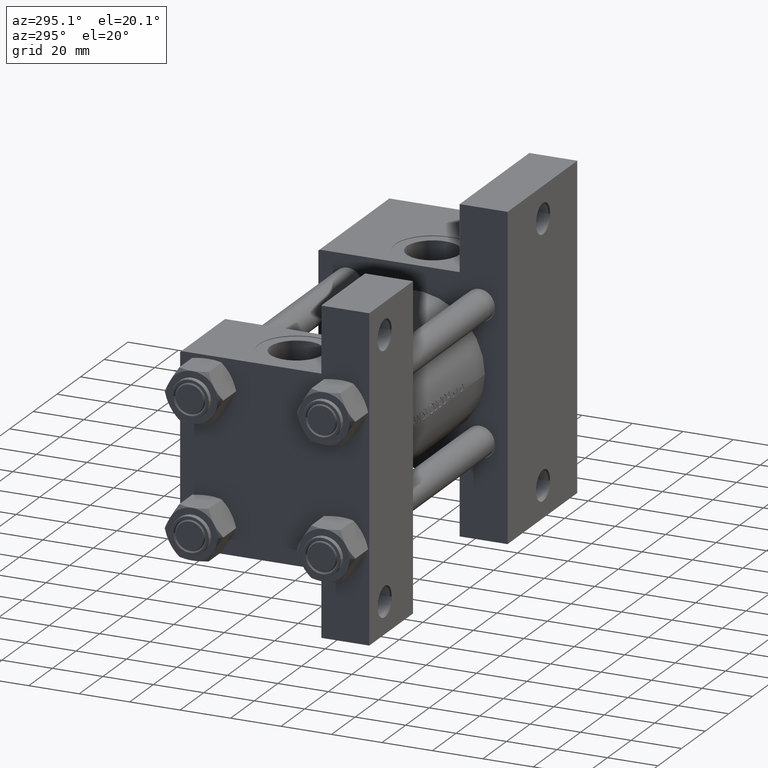
[diagram: clean part render]
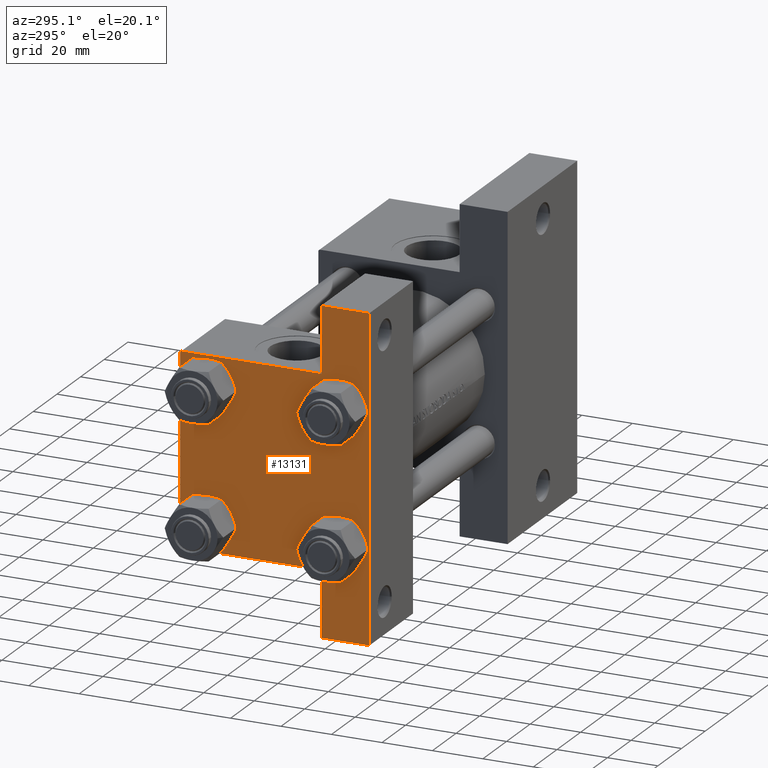
[diagram: same view with one face highlighted and labeled with its STEP entity id]
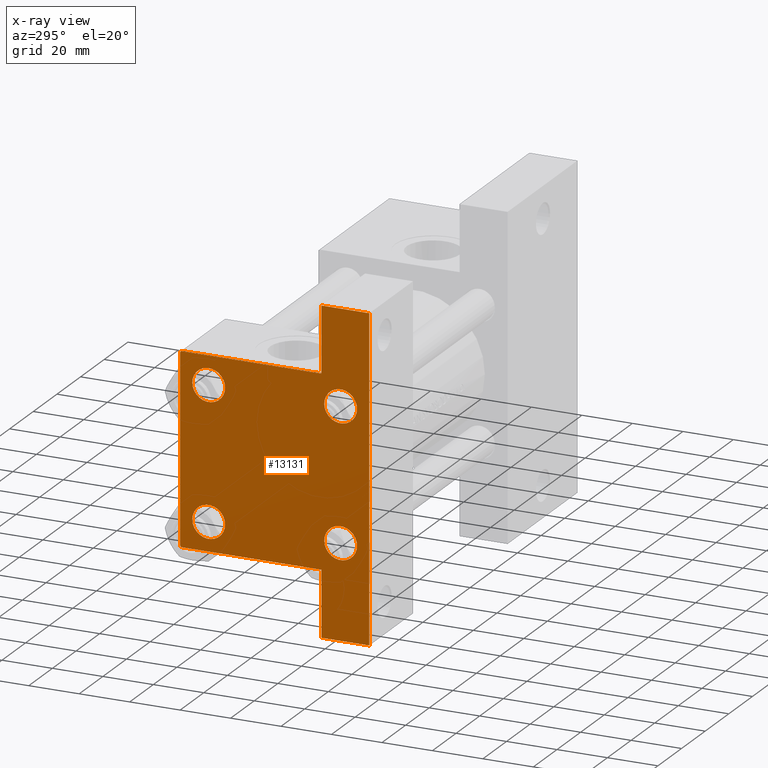
[diagram: x-ray of the same camera — body ghosted, the highlighted face saturated]
A machine part, auxiliary view. The second image highlights one B-rep face of the part: STEP entity #13131.
The next image is the same camera in x-ray: the body ghosted, the highlighted face saturated — about 0% of this face is hidden behind the body in this view.
In plain terms, the highlighted planar face has unit normal (-1, 0, -0).
Its self-contained STEP definition (entity closure, byte-faithful):
#388 = VERTEX_POINT ( 'NONE', #46944 ) ;
#654 = ORIENTED_EDGE ( 'NONE', *, *, #21743, .T. ) ;
#714 = LINE ( 'NONE', #19872, #14395 ) ;
#1068 = CARTESIAN_POINT ( 'NONE',  ( 0.000000000000000000, 37.49999999999999289, 37.50000000000000000 ) ) ;
#1173 = EDGE_CURVE ( 'NONE', #27024, #38282, #2565, .T. ) ;
#1183 = ORIENTED_EDGE ( 'NONE', *, *, #24142, .T. ) ;
#1240 = CARTESIAN_POINT ( 'NONE',  ( 0.000000000000000000, 37.49999999999999289, -37.50000000000000000 ) ) ;
#1435 = CARTESIAN_POINT ( 'NONE',  ( 1.595073532467135757E-14, 63.50000000000001421, -18.50000000000000355 ) ) ;
#1501 = CARTESIAN_POINT ( 'NONE',  ( 0.000000000000000000, -26.14999999999999147, 32.65000000000003411 ) ) ;
#1716 = DIRECTION ( 'NONE',  ( 0.000000000000000000, -1.000000000000000000, -9.251858538542972814E-17 ) ) ;
#1920 = LINE ( 'NONE', #1435, #36475 ) ;
#2390 = EDGE_LOOP ( 'NONE', ( #16419, #1183, #18318, #43045, #16098, #3454, #41268, #9907, #23960, #11750 ) ) ;
#2565 = CIRCLE ( 'NONE', #37707, 6.500000000000015987 ) ;
#2908 = DIRECTION ( 'NONE',  ( 0.000000000000000000, -1.734723475976806848E-16, -1.000000000000000000 ) ) ;
#3454 = ORIENTED_EDGE ( 'NONE', *, *, #41406, .F. ) ;
#3781 = FACE_BOUND ( 'NONE', #41487, .T. ) ;
#3820 = VERTEX_POINT ( 'NONE', #28024 ) ;
#4308 = AXIS2_PLACEMENT_3D ( 'NONE', #8272, #22950, #19207 ) ;
#4360 = VERTEX_POINT ( 'NONE', #22475 ) ;
#4740 = LINE ( 'NONE', #12441, #12150 ) ;
#5040 = DIRECTION ( 'NONE',  ( 0.000000000000000000, 0.000000000000000000, -1.000000000000000000 ) ) ;
#5483 = CARTESIAN_POINT ( 'NONE',  ( 0.000000000000000000, -37.50000000000000711, 36.99999999999999289 ) ) ;
#5591 = EDGE_CURVE ( 'NONE', #19096, #11044, #4740, .T. ) ;
#5592 = DIRECTION ( 'NONE',  ( 1.000000000000000000, -0.000000000000000000, 0.000000000000000000 ) ) ;
#5803 = ORIENTED_EDGE ( 'NONE', *, *, #1173, .T. ) ;
#6056 = ORIENTED_EDGE ( 'NONE', *, *, #44767, .T. ) ;
#6525 = EDGE_CURVE ( 'NONE', #28222, #44257, #16426, .T. ) ;
#7077 = AXIS2_PLACEMENT_3D ( 'NONE', #43112, #16702, #13446 ) ;
#7379 = ORIENTED_EDGE ( 'NONE', *, *, #23013, .T. ) ;
#7805 = CIRCLE ( 'NONE', #48362, 6.500000000000015987 ) ;
#7870 = DIRECTION ( 'NONE',  ( 4.278042683914906889E-17, -1.000000000000000000, 0.000000000000000000 ) ) ;
#8218 = DIRECTION ( 'NONE',  ( 0.000000000000000000, 0.000000000000000000, 1.000000000000000000 ) ) ;
#8272 = CARTESIAN_POINT ( 'NONE',  ( 0.000000000000000000, 0.000000000000000000, 0.000000000000000000 ) ) ;
#9003 = VECTOR ( 'NONE', #1716, 1000.000000000000000 ) ;
#9374 = CIRCLE ( 'NONE', #24494, 6.500000000000015987 ) ;
#9907 = ORIENTED_EDGE ( 'NONE', *, *, #6525, .T. ) ;
#9912 = CIRCLE ( 'NONE', #37759, 6.500000000000023093 ) ;
#10398 = LINE ( 'NONE', #11382, #41327 ) ;
#10839 = EDGE_CURVE ( 'NONE', #22424, #388, #9912, .T. ) ;
#11044 = VERTEX_POINT ( 'NONE', #12320 ) ;
#11382 = CARTESIAN_POINT ( 'NONE',  ( -0.000000000000000000, -37.25000000000000000, 37.25000000000000000 ) ) ;
#11727 = CARTESIAN_POINT ( 'NONE',  ( 0.000000000000000000, 36.99999999999999289, 37.50000000000000000 ) ) ;
#11750 = ORIENTED_EDGE ( 'NONE', *, *, #44619, .F. ) ;
#12150 = VECTOR ( 'NONE', #23658, 1000.000000000000114 ) ;
#12234 = ORIENTED_EDGE ( 'NONE', *, *, #42221, .T. ) ;
#12320 = CARTESIAN_POINT ( 'NONE',  ( 0.000000000000000000, 37.49999999999999289, 37.00000000000000000 ) ) ;
#12441 = CARTESIAN_POINT ( 'NONE',  ( 0.000000000000000000, 37.24999999999999289, 37.24999999999999289 ) ) ;
#12442 = ORIENTED_EDGE ( 'NONE', *, *, #10839, .T. ) ;
#12556 = CARTESIAN_POINT ( 'NONE',  ( 0.000000000000000000, -26.14999999999999147, 19.64999999999999147 ) ) ;
#12638 = DIRECTION ( 'NONE',  ( 0.000000000000000000, 9.251858538542971581E-17, -1.000000000000000000 ) ) ;
#12716 = CIRCLE ( 'NONE', #19855, 6.500000000000023093 ) ;
#13131 = ADVANCED_FACE ( 'NONE', ( #38394, #15717, #3781, #23189, #37906 ), #18719, .T. ) ;
#13371 = AXIS2_PLACEMENT_3D ( 'NONE', #46065, #39069, #27125 ) ;
#13446 = DIRECTION ( 'NONE',  ( 0.000000000000000000, 0.000000000000000000, 1.000000000000000000 ) ) ;
#13577 = VERTEX_POINT ( 'NONE', #20365 ) ;
#13723 = CARTESIAN_POINT ( 'NONE',  ( 0.000000000000000000, 37.49999999999999289, 37.50000000000000000 ) ) ;
#14395 = VECTOR ( 'NONE', #12638, 1000.000000000000000 ) ;
#14472 = VERTEX_POINT ( 'NONE', #30813 ) ;
#15629 = EDGE_LOOP ( 'NONE', ( #6056, #12442 ) ) ;
#15717 = FACE_BOUND ( 'NONE', #49274, .T. ) ;
#16098 = ORIENTED_EDGE ( 'NONE', *, *, #32378, .T. ) ;
#16419 = ORIENTED_EDGE ( 'NONE', *, *, #46306, .F. ) ;
#16426 = LINE ( 'NONE', #1240, #9003 ) ;
#16702 = DIRECTION ( 'NONE',  ( 1.000000000000000000, -0.000000000000000000, 0.000000000000000000 ) ) ;
#17251 = CARTESIAN_POINT ( 'NONE',  ( 0.000000000000000000, 26.14999999999999858, -32.65000000000001990 ) ) ;
#17758 = EDGE_LOOP ( 'NONE', ( #7379, #12234 ) ) ;
#17819 = CARTESIAN_POINT ( 'NONE',  ( 0.000000000000000000, 26.14999999999999858, -26.15000000000000213 ) ) ;
#17960 = VECTOR ( 'NONE', #25104, 1000.000000000000000 ) ;
#18318 = ORIENTED_EDGE ( 'NONE', *, *, #33420, .F. ) ;
#18719 = PLANE ( 'NONE',  #4308 ) ;
#18963 = DIRECTION ( 'NONE',  ( 0.000000000000000000, 0.000000000000000000, 1.000000000000000000 ) ) ;
#19096 = VERTEX_POINT ( 'NONE', #11727 ) ;
#19207 = DIRECTION ( 'NONE',  ( -0.000000000000000000, 0.000000000000000000, 1.000000000000000000 ) ) ;
#19640 = CARTESIAN_POINT ( 'NONE',  ( 0.000000000000000000, 26.14999999999999858, 26.15000000000000213 ) ) ;
#19855 = AXIS2_PLACEMENT_3D ( 'NONE', #31025, #24028, #42957 ) ;
#19872 = CARTESIAN_POINT ( 'NONE',  ( 0.000000000000000000, -37.50000000000000711, 37.49999999999999289 ) ) ;
#20365 = CARTESIAN_POINT ( 'NONE',  ( 0.000000000000000000, -37.00000000000000711, 37.49999999999999289 ) ) ;
#20526 = CARTESIAN_POINT ( 'NONE',  ( 0.000000000000000000, 26.14999999999999858, -26.15000000000000213 ) ) ;
#20604 = EDGE_CURVE ( 'NONE', #3820, #4360, #22057, .T. ) ;
#20784 = CARTESIAN_POINT ( 'NONE',  ( 0.000000000000000000, 37.49999999999999289, -18.49999999999999645 ) ) ;
#21743 = EDGE_CURVE ( 'NONE', #38282, #27024, #7805, .T. ) ;
#22057 = CIRCLE ( 'NONE', #45111, 6.500000000000015987 ) ;
#22424 = VERTEX_POINT ( 'NONE', #45931 ) ;
#22475 = CARTESIAN_POINT ( 'NONE',  ( 0.000000000000000000, -26.14999999999999147, -19.64999999999999503 ) ) ;
#22872 = VERTEX_POINT ( 'NONE', #5483 ) ;
#22950 = DIRECTION ( 'NONE',  ( -1.000000000000000000, 0.000000000000000000, -0.000000000000000000 ) ) ;
#23013 = EDGE_CURVE ( 'NONE', #40296, #47115, #45222, .T. ) ;
#23189 = FACE_BOUND ( 'NONE', #15629, .T. ) ;
#23284 = LINE ( 'NONE', #34283, #31811 ) ;
#23658 = DIRECTION ( 'NONE',  ( 0.000000000000000000, 0.7071067811865474617, -0.7071067811865474617 ) ) ;
#23783 = CIRCLE ( 'NONE', #7077, 6.500000000000023093 ) ;
#23960 = ORIENTED_EDGE ( 'NONE', *, *, #30177, .F. ) ;
#24028 = DIRECTION ( 'NONE',  ( 1.000000000000000000, -0.000000000000000000, 0.000000000000000000 ) ) ;
#24142 = EDGE_CURVE ( 'NONE', #22872, #13577, #10398, .T. ) ;
#24494 = AXIS2_PLACEMENT_3D ( 'NONE', #27181, #46130, #18963 ) ;
#24700 = DIRECTION ( 'NONE',  ( 0.000000000000000000, -1.000000000000000000, -9.251858538542971581E-17 ) ) ;
#25104 = DIRECTION ( 'NONE',  ( 0.000000000000000000, -1.734723475976806848E-16, -1.000000000000000000 ) ) ;
#25186 = LINE ( 'NONE', #13723, #41928 ) ;
#25487 = EDGE_CURVE ( 'NONE', #14472, #28222, #37033, .T. ) ;
#25840 = DIRECTION ( 'NONE',  ( -0.000000000000000000, 0.7071067811865474617, 0.7071067811865474617 ) ) ;
#27024 = VERTEX_POINT ( 'NONE', #17251 ) ;
#27125 = DIRECTION ( 'NONE',  ( 0.000000000000000000, 0.000000000000000000, 1.000000000000000000 ) ) ;
#27181 = CARTESIAN_POINT ( 'NONE',  ( 0.000000000000000000, -26.14999999999999147, -26.15000000000000924 ) ) ;
#28024 = CARTESIAN_POINT ( 'NONE',  ( 0.000000000000000000, -26.14999999999999147, -32.65000000000002700 ) ) ;
#28222 = VERTEX_POINT ( 'NONE', #43514 ) ;
#30177 = EDGE_CURVE ( 'NONE', #43494, #44257, #32096, .T. ) ;
#30772 = VECTOR ( 'NONE', #5040, 1000.000000000000000 ) ;
#30813 = CARTESIAN_POINT ( 'NONE',  ( 1.595073532467135441E-14, 63.50000000000000000, -18.50000000000000355 ) ) ;
#31025 = CARTESIAN_POINT ( 'NONE',  ( 0.000000000000000000, 26.14999999999999858, 26.15000000000000213 ) ) ;
#31605 = DIRECTION ( 'NONE',  ( 1.000000000000000000, -0.000000000000000000, 0.000000000000000000 ) ) ;
#31811 = VECTOR ( 'NONE', #7870, 1000.000000000000000 ) ;
#32096 = LINE ( 'NONE', #47784, #17960 ) ;
#32122 = CARTESIAN_POINT ( 'NONE',  ( 0.000000000000000000, 26.14999999999999858, -19.64999999999998792 ) ) ;
#32378 = EDGE_CURVE ( 'NONE', #11044, #40877, #39170, .T. ) ;
#32415 = ORIENTED_EDGE ( 'NONE', *, *, #20604, .T. ) ;
#33420 = EDGE_CURVE ( 'NONE', #19096, #13577, #25186, .T. ) ;
#33867 = CARTESIAN_POINT ( 'NONE',  ( -7.145701223179004046E-16, -37.50000000000000711, -18.50000000000000355 ) ) ;
#34283 = CARTESIAN_POINT ( 'NONE',  ( 3.977209754999744250E-16, -63.49999999999998579, -18.50000000000000355 ) ) ;
#35330 = DIRECTION ( 'NONE',  ( -2.877097866686192789E-16, -1.000000000000000000, 0.000000000000000000 ) ) ;
#35336 = EDGE_CURVE ( 'NONE', #4360, #3820, #9374, .T. ) ;
#35544 = CARTESIAN_POINT ( 'NONE',  ( 3.977209754999747208E-16, -63.50000000000000000, -37.49999999999999289 ) ) ;
#35585 = ORIENTED_EDGE ( 'NONE', *, *, #35336, .T. ) ;
#35812 = DIRECTION ( 'NONE',  ( 1.000000000000000000, -0.000000000000000000, 0.000000000000000000 ) ) ;
#36475 = VECTOR ( 'NONE', #35330, 1000.000000000000000 ) ;
#37033 = LINE ( 'NONE', #43762, #46778 ) ;
#37065 = CARTESIAN_POINT ( 'NONE',  ( 3.977209754999747208E-16, -63.50000000000000000, -18.50000000000000355 ) ) ;
#37707 = AXIS2_PLACEMENT_3D ( 'NONE', #20526, #5592, #39720 ) ;
#37759 = AXIS2_PLACEMENT_3D ( 'NONE', #19640, #31605, #8218 ) ;
#37906 = FACE_OUTER_BOUND ( 'NONE', #2390, .T. ) ;
#38282 = VERTEX_POINT ( 'NONE', #32122 ) ;
#38394 = FACE_BOUND ( 'NONE', #17758, .T. ) ;
#38448 = VERTEX_POINT ( 'NONE', #33867 ) ;
#39069 = DIRECTION ( 'NONE',  ( 1.000000000000000000, -0.000000000000000000, 0.000000000000000000 ) ) ;
#39170 = LINE ( 'NONE', #1068, #30772 ) ;
#39542 = CARTESIAN_POINT ( 'NONE',  ( 0.000000000000000000, -26.14999999999999147, -26.15000000000000924 ) ) ;
#39720 = DIRECTION ( 'NONE',  ( 0.000000000000000000, 0.000000000000000000, 1.000000000000000000 ) ) ;
#40296 = VERTEX_POINT ( 'NONE', #1501 ) ;
#40504 = DIRECTION ( 'NONE',  ( 1.000000000000000000, -0.000000000000000000, 0.000000000000000000 ) ) ;
#40877 = VERTEX_POINT ( 'NONE', #20784 ) ;
#41268 = ORIENTED_EDGE ( 'NONE', *, *, #25487, .T. ) ;
#41327 = VECTOR ( 'NONE', #25840, 1000.000000000000114 ) ;
#41406 = EDGE_CURVE ( 'NONE', #14472, #40877, #1920, .T. ) ;
#41487 = EDGE_LOOP ( 'NONE', ( #654, #5803 ) ) ;
#41928 = VECTOR ( 'NONE', #24700, 1000.000000000000000 ) ;
#42221 = EDGE_CURVE ( 'NONE', #47115, #40296, #23783, .T. ) ;
#42957 = DIRECTION ( 'NONE',  ( 0.000000000000000000, 0.000000000000000000, 1.000000000000000000 ) ) ;
#43045 = ORIENTED_EDGE ( 'NONE', *, *, #5591, .T. ) ;
#43112 = CARTESIAN_POINT ( 'NONE',  ( 0.000000000000000000, -26.14999999999999147, 26.15000000000000924 ) ) ;
#43494 = VERTEX_POINT ( 'NONE', #37065 ) ;
#43514 = CARTESIAN_POINT ( 'NONE',  ( 1.595073532467135441E-14, 63.50000000000000000, -37.50000000000002132 ) ) ;
#43762 = CARTESIAN_POINT ( 'NONE',  ( 1.595073532467135441E-14, 63.50000000000001421, 26.72167621838005047 ) ) ;
#44257 = VERTEX_POINT ( 'NONE', #35544 ) ;
#44484 = DIRECTION ( 'NONE',  ( 0.000000000000000000, 0.000000000000000000, 1.000000000000000000 ) ) ;
#44619 = EDGE_CURVE ( 'NONE', #38448, #43494, #23284, .T. ) ;
#44767 = EDGE_CURVE ( 'NONE', #388, #22424, #12716, .T. ) ;
#45111 = AXIS2_PLACEMENT_3D ( 'NONE', #39542, #35812, #46792 ) ;
#45222 = CIRCLE ( 'NONE', #13371, 6.500000000000023093 ) ;
#45931 = CARTESIAN_POINT ( 'NONE',  ( 0.000000000000000000, 26.14999999999999858, 19.64999999999998437 ) ) ;
#46065 = CARTESIAN_POINT ( 'NONE',  ( 0.000000000000000000, -26.14999999999999147, 26.15000000000000924 ) ) ;
#46130 = DIRECTION ( 'NONE',  ( 1.000000000000000000, -0.000000000000000000, 0.000000000000000000 ) ) ;
#46306 = EDGE_CURVE ( 'NONE', #22872, #38448, #714, .T. ) ;
#46778 = VECTOR ( 'NONE', #2908, 1000.000000000000000 ) ;
#46792 = DIRECTION ( 'NONE',  ( 0.000000000000000000, 0.000000000000000000, 1.000000000000000000 ) ) ;
#46944 = CARTESIAN_POINT ( 'NONE',  ( 0.000000000000000000, 26.14999999999999858, 32.65000000000002700 ) ) ;
#47115 = VERTEX_POINT ( 'NONE', #12556 ) ;
#47784 = CARTESIAN_POINT ( 'NONE',  ( 3.977209754999747208E-16, -63.49999999999998579, 26.72167621838007889 ) ) ;
#48362 = AXIS2_PLACEMENT_3D ( 'NONE', #17819, #40504, #44484 ) ;
#49274 = EDGE_LOOP ( 'NONE', ( #35585, #32415 ) ) ;